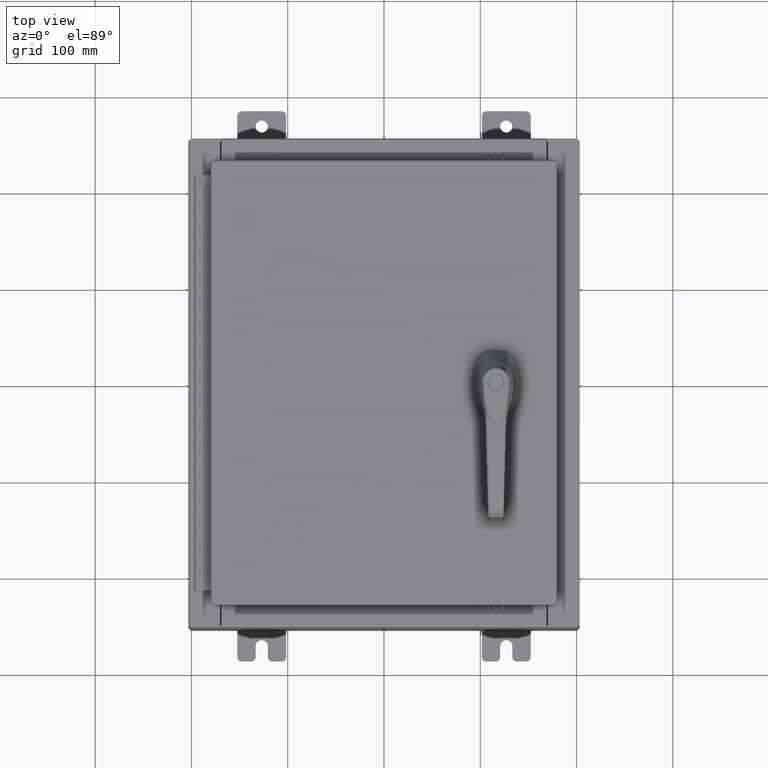
[diagram: clean part render]
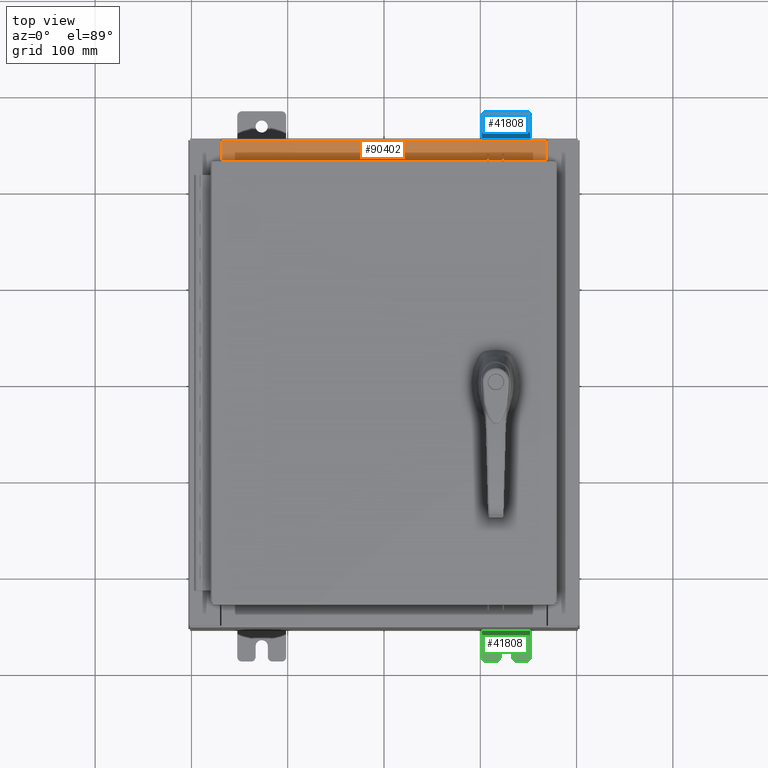
[diagram: same view with three faces highlighted in distinct colors, each labeled with its STEP entity id]
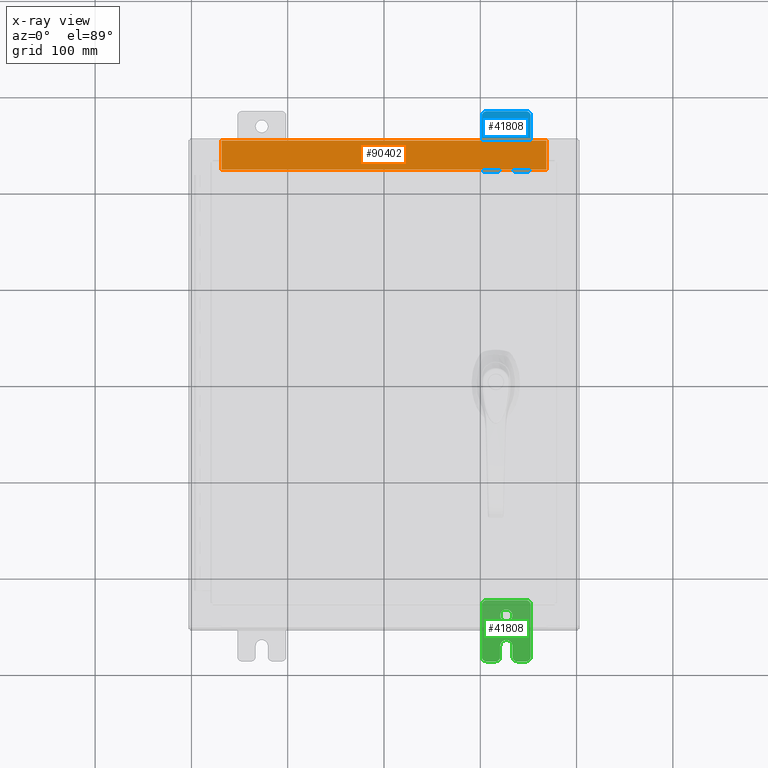
[diagram: x-ray of the same camera — body ghosted, the three highlighted faces saturated]
A machine part, top view with three faces highlighted in distinct colors.
The next image is the same camera in x-ray (body ghosted, the three faces saturated) — at least one of them is partly hidden behind the body in this view.
Their STEP definitions:

[orange] entity #90402 — the highlighted planar face has unit normal (0, 0, 1).
#4102 = CARTESIAN_POINT ( 'NONE',  ( -6.637200000000000000, -0.08770000000000026400, 3.999999999999999600 ) ) ;
#6492 = AXIS2_PLACEMENT_3D ( 'NONE', #108415, #32819, #91773 ) ;
#7328 = PLANE ( 'NONE',  #6492 ) ;
#7550 = DIRECTION ( 'NONE',  ( -0.0000000000000000000, 1.000000000000000000, -3.566381192773190000E-015 ) ) ;
#8422 = FACE_OUTER_BOUND ( 'NONE', #19111, .T. ) ;
#13014 = LINE ( 'NONE', #91639, #55303 ) ;
#14811 = CARTESIAN_POINT ( 'NONE',  ( 6.637200000000000000, -1.300299999999999800, 4.000000000000003600 ) ) ;
#17682 = LINE ( 'NONE', #32162, #104755 ) ;
#19111 = EDGE_LOOP ( 'NONE', ( #94051, #74750, #92454, #97359 ) ) ;
#21750 = VERTEX_POINT ( 'NONE', #4102 ) ;
#21896 = LINE ( 'NONE', #14811, #69433 ) ;
#32162 = CARTESIAN_POINT ( 'NONE',  ( 0.0000000000000000000, -0.08770000000000026400, 4.000000000000000000 ) ) ;
#32819 = DIRECTION ( 'NONE',  ( 0.0000000000000000000, 3.566381192773190000E-015, 1.000000000000000000 ) ) ;
#42193 = CARTESIAN_POINT ( 'NONE',  ( 6.637199999999999100, -0.08769999999999993100, 3.999999999999999600 ) ) ;
#42718 = EDGE_CURVE ( 'NONE', #52700, #21750, #13014, .T. ) ;
#45093 = VECTOR ( 'NONE', #82594, 39.37007874015748100 ) ;
#52700 = VERTEX_POINT ( 'NONE', #60321 ) ;
#55303 = VECTOR ( 'NONE', #7550, 39.37007874015748100 ) ;
#57280 = EDGE_CURVE ( 'NONE', #92545, #21750, #17682, .T. ) ;
#57596 = DIRECTION ( 'NONE',  ( -1.000000000000000000, 0.0000000000000000000, 0.0000000000000000000 ) ) ;
#60004 = CARTESIAN_POINT ( 'NONE',  ( 6.637200000000000000, -1.287299999999999900, 4.000000000000003600 ) ) ;
#60321 = CARTESIAN_POINT ( 'NONE',  ( -6.637200000000000000, -1.287299999999999200, 4.000000000000003600 ) ) ;
#65391 = DIRECTION ( 'NONE',  ( -0.0000000000000000000, -1.000000000000000000, 3.566381192773190000E-015 ) ) ;
#69433 = VECTOR ( 'NONE', #65391, 39.37007874015748100 ) ;
#71336 = EDGE_CURVE ( 'NONE', #87967, #52700, #89934, .T. ) ;
#74750 = ORIENTED_EDGE ( 'NONE', *, *, #71336, .F. ) ;
#79565 = EDGE_CURVE ( 'NONE', #92545, #87967, #21896, .T. ) ;
#82594 = DIRECTION ( 'NONE',  ( -1.000000000000000000, 0.0000000000000000000, 0.0000000000000000000 ) ) ;
#87967 = VERTEX_POINT ( 'NONE', #60004 ) ;
#89934 = LINE ( 'NONE', #97370, #45093 ) ;
#90402 = ADVANCED_FACE ( 'NONE', ( #8422 ), #7328, .T. ) ;
#91639 = CARTESIAN_POINT ( 'NONE',  ( -6.637200000000000000, -0.07469999999999973900, 3.999999999999999600 ) ) ;
#91773 = DIRECTION ( 'NONE',  ( 0.0000000000000000000, -1.000000000000000000, 3.566381192773190000E-015 ) ) ;
#92454 = ORIENTED_EDGE ( 'NONE', *, *, #79565, .F. ) ;
#92545 = VERTEX_POINT ( 'NONE', #42193 ) ;
#94051 = ORIENTED_EDGE ( 'NONE', *, *, #42718, .F. ) ;
#97359 = ORIENTED_EDGE ( 'NONE', *, *, #57280, .T. ) ;
#97370 = CARTESIAN_POINT ( 'NONE',  ( 6.637200000000000900, -1.287299999999999900, 4.000000000000003600 ) ) ;
#104755 = VECTOR ( 'NONE', #57596, 39.37007874015748100 ) ;
#108415 = CARTESIAN_POINT ( 'NONE',  ( 0.0000000000000000000, 1.425992975200418200E-014, 3.999999999999999600 ) ) ;

[blue] entity #41808 — the highlighted planar face has unit normal (0, 0, 1).
#828 = VERTEX_POINT ( 'NONE', #31743 ) ;
#1307 = VECTOR ( 'NONE', #72454, 39.37007874015748100 ) ;
#2871 = VECTOR ( 'NONE', #24168, 39.37007874015748100 ) ;
#3109 = AXIS2_PLACEMENT_3D ( 'NONE', #34900, #93877, #43405 ) ;
#3306 = ORIENTED_EDGE ( 'NONE', *, *, #62305, .T. ) ;
#3698 = DIRECTION ( 'NONE',  ( 0.0000000000000000000, 0.0000000000000000000, -1.000000000000000000 ) ) ;
#4730 = CARTESIAN_POINT ( 'NONE',  ( 0.0000000000000000000, 1.249999999999994700, -0.8100000000000092700 ) ) ;
#7276 = CARTESIAN_POINT ( 'NONE',  ( 0.0000000000000000000, 1.249999999999994200, -1.000000000000010400 ) ) ;
#7861 = FACE_BOUND ( 'NONE', #37366, .T. ) ;
#9079 = EDGE_CURVE ( 'NONE', #103286, #42061, #104393, .T. ) ;
#11403 = CARTESIAN_POINT ( 'NONE',  ( 0.0000000000000000000, 0.0000000000000000000, 0.0000000000000000000 ) ) ;
#13575 = ORIENTED_EDGE ( 'NONE', *, *, #61903, .T. ) ;
#15674 = CARTESIAN_POINT ( 'NONE',  ( 6.829619984160658000E-017, -1.250000000000003800, 0.2500000000000005000 ) ) ;
#16662 = LINE ( 'NONE', #80530, #83959 ) ;
#17321 = ORIENTED_EDGE ( 'NONE', *, *, #45807, .T. ) ;
#18038 = CARTESIAN_POINT ( 'NONE',  ( 0.0000000000000000000, -1.060000000000003400, -0.4400000000000005000 ) ) ;
#20679 = CARTESIAN_POINT ( 'NONE',  ( 0.0000000000000000000, 1.059999999999993600, -0.8100000000000089400 ) ) ;
#23374 = CARTESIAN_POINT ( 'NONE',  ( 0.0000000000000000000, 1.249999999999997600, 0.9999999999999951200 ) ) ;
#24168 = DIRECTION ( 'NONE',  ( 6.556435184794182400E-016, 1.000000000000000000, 0.0000000000000000000 ) ) ;
#24665 = VERTEX_POINT ( 'NONE', #37777 ) ;
#25093 = LINE ( 'NONE', #7276, #50223 ) ;
#25336 = EDGE_LOOP ( 'NONE', ( #3306, #94417, #69864, #103686, #106895, #34154, #46483, #72968, #66221, #42225, #17321, #69862, #13575, #75657 ) ) ;
#25478 = CIRCLE ( 'NONE', #100540, 0.1900000000000011100 ) ;
#26513 = DIRECTION ( 'NONE',  ( 0.0000000000000000000, 0.0000000000000000000, -1.000000000000000000 ) ) ;
#26853 = CIRCLE ( 'NONE', #100725, 0.1900000000000011100 ) ;
#27942 = LINE ( 'NONE', #15674, #2871 ) ;
#28317 = EDGE_CURVE ( 'NONE', #86008, #72783, #46642, .T. ) ;
#28808 = AXIS2_PLACEMENT_3D ( 'NONE', #93530, #43045, #102037 ) ;
#29185 = DIRECTION ( 'NONE',  ( 0.0000000000000000000, 0.0000000000000000000, -1.000000000000000000 ) ) ;
#30307 = FACE_OUTER_BOUND ( 'NONE', #25336, .T. ) ;
#30375 = ORIENTED_EDGE ( 'NONE', *, *, #32565, .F. ) ;
#30592 = CARTESIAN_POINT ( 'NONE',  ( 4.039428427013647300E-016, 0.6249999999999992200, -9.783840404509077400E-018 ) ) ;
#30777 = CARTESIAN_POINT ( 'NONE',  ( 0.0000000000000000000, -1.250000000000003100, 0.4400000000000020000 ) ) ;
#30815 = DIRECTION ( 'NONE',  ( 1.000000000000000000, -0.0000000000000000000, -5.163192708025532000E-017 ) ) ;
#31743 = CARTESIAN_POINT ( 'NONE',  ( 3.910348609313009100E-016, 0.6249999999999992200, -0.2499999999999999200 ) ) ;
#32565 = EDGE_CURVE ( 'NONE', #828, #81854, #44879, .T. ) ;
#32657 = AXIS2_PLACEMENT_3D ( 'NONE', #81298, #30815, #89801 ) ;
#34154 = ORIENTED_EDGE ( 'NONE', *, *, #84071, .T. ) ;
#34900 = CARTESIAN_POINT ( 'NONE',  ( 0.0000000000000000000, -1.060000000000002100, 0.4400000000000016700 ) ) ;
#35667 = CARTESIAN_POINT ( 'NONE',  ( 4.780733988912460100E-016, -0.6249999999999993300, 5.858939755051854500E-017 ) ) ;
#36596 = VERTEX_POINT ( 'NONE', #76926 ) ;
#36869 = DIRECTION ( 'NONE',  ( 1.000000000000000000, 0.0000000000000000000, -0.0000000000000000000 ) ) ;
#37366 = EDGE_LOOP ( 'NONE', ( #30375, #78326 ) ) ;
#37777 = CARTESIAN_POINT ( 'NONE',  ( 0.0000000000000000000, 1.059999999999996500, 0.9999999999999953400 ) ) ;
#38308 = EDGE_CURVE ( 'NONE', #40405, #103286, #60838, .T. ) ;
#39025 = DIRECTION ( 'NONE',  ( -5.163192708025533800E-017, 0.0000000000000000000, -1.000000000000000000 ) ) ;
#40405 = VERTEX_POINT ( 'NONE', #57310 ) ;
#41577 = EDGE_CURVE ( 'NONE', #106564, #86008, #66005, .T. ) ;
#41793 = AXIS2_PLACEMENT_3D ( 'NONE', #104749, #54273, #3698 ) ;
#41808 = ADVANCED_FACE ( 'NONE', ( #7861, #30307 ), #87395, .T. ) ;
#42061 = VERTEX_POINT ( 'NONE', #108038 ) ;
#42225 = ORIENTED_EDGE ( 'NONE', *, *, #9079, .T. ) ;
#43045 = DIRECTION ( 'NONE',  ( 1.000000000000000000, 0.0000000000000000000, -0.0000000000000000000 ) ) ;
#43405 = DIRECTION ( 'NONE',  ( 0.0000000000000000000, 0.0000000000000000000, -1.000000000000000000 ) ) ;
#44152 = DIRECTION ( 'NONE',  ( -6.523827964459551700E-016, -1.000000000000000000, 0.0000000000000000000 ) ) ;
#44879 = CIRCLE ( 'NONE', #93091, 0.2499999999999999200 ) ;
#45732 = CARTESIAN_POINT ( 'NONE',  ( 0.0000000000000000000, 1.059999999999996300, 0.8099999999999938400 ) ) ;
#45807 = EDGE_CURVE ( 'NONE', #42061, #76156, #16662, .T. ) ;
#46483 = ORIENTED_EDGE ( 'NONE', *, *, #70037, .T. ) ;
#46642 = CIRCLE ( 'NONE', #3109, 0.1900000000000011400 ) ;
#47373 = EDGE_CURVE ( 'NONE', #76156, #83464, #26853, .T. ) ;
#47657 = CARTESIAN_POINT ( 'NONE',  ( 1.928684683526972300E-016, -1.060000000000002100, 0.2500000000000005000 ) ) ;
#48817 = AXIS2_PLACEMENT_3D ( 'NONE', #45732, #104744, #54267 ) ;
#49550 = VERTEX_POINT ( 'NONE', #74103 ) ;
#49827 = EDGE_CURVE ( 'NONE', #72783, #68995, #27942, .T. ) ;
#50223 = VECTOR ( 'NONE', #57853, 39.37007874015748100 ) ;
#50532 = CARTESIAN_POINT ( 'NONE',  ( 0.0000000000000000000, 1.059999999999993400, -1.000000000000010000 ) ) ;
#50621 = DIRECTION ( 'NONE',  ( 0.0000000000000000000, -1.639108796198553600E-015, -1.000000000000000000 ) ) ;
#52978 = CARTESIAN_POINT ( 'NONE',  ( 0.0000000000000000000, -1.250000000000002200, 0.9999999999999992200 ) ) ;
#54267 = DIRECTION ( 'NONE',  ( 0.0000000000000000000, 0.0000000000000000000, -1.000000000000000000 ) ) ;
#54273 = DIRECTION ( 'NONE',  ( 1.000000000000000000, 0.0000000000000000000, -0.0000000000000000000 ) ) ;
#57310 = CARTESIAN_POINT ( 'NONE',  ( 0.0000000000000000000, -1.250000000000004700, -0.4400000000000002200 ) ) ;
#57853 = DIRECTION ( 'NONE',  ( 0.0000000000000000000, 1.639108796198553600E-015, 1.000000000000000000 ) ) ;
#58215 = VECTOR ( 'NONE', #103432, 39.37007874015748100 ) ;
#60613 = CIRCLE ( 'NONE', #88523, 0.2499999999999999200 ) ;
#60838 = LINE ( 'NONE', #52978, #58215 ) ;
#61761 = CIRCLE ( 'NONE', #28808, 0.1900000000000011100 ) ;
#61903 = EDGE_CURVE ( 'NONE', #83464, #49550, #25093, .T. ) ;
#62305 = EDGE_CURVE ( 'NONE', #24665, #64289, #65968, .T. ) ;
#64289 = VERTEX_POINT ( 'NONE', #82473 ) ;
#65363 = CARTESIAN_POINT ( 'NONE',  ( 0.0000000000000000000, -1.250000000000002400, 0.8099999999999980500 ) ) ;
#65968 = LINE ( 'NONE', #23374, #1307 ) ;
#66005 = LINE ( 'NONE', #101071, #108208 ) ;
#66221 = ORIENTED_EDGE ( 'NONE', *, *, #38308, .T. ) ;
#68548 = CIRCLE ( 'NONE', #32657, 0.2499999999999999200 ) ;
#68995 = VERTEX_POINT ( 'NONE', #97308 ) ;
#69862 = ORIENTED_EDGE ( 'NONE', *, *, #47373, .T. ) ;
#69864 = ORIENTED_EDGE ( 'NONE', *, *, #41577, .T. ) ;
#70037 = EDGE_CURVE ( 'NONE', #36596, #96807, #100624, .T. ) ;
#72454 = DIRECTION ( 'NONE',  ( 0.0000000000000000000, -1.000000000000000000, 1.639108796198558100E-015 ) ) ;
#72551 = CARTESIAN_POINT ( 'NONE',  ( 0.0000000000000000000, -1.250000000000005300, -0.8100000000000047200 ) ) ;
#72783 = VERTEX_POINT ( 'NONE', #47657 ) ;
#72968 = ORIENTED_EDGE ( 'NONE', *, *, #91471, .T. ) ;
#73979 = CARTESIAN_POINT ( 'NONE',  ( 4.780733988912460100E-016, -0.6249999999999993300, -0.2499999999999993900 ) ) ;
#74103 = CARTESIAN_POINT ( 'NONE',  ( 0.0000000000000000000, 1.249999999999997300, 0.8099999999999935000 ) ) ;
#75657 = ORIENTED_EDGE ( 'NONE', *, *, #80109, .T. ) ;
#76156 = VERTEX_POINT ( 'NONE', #50532 ) ;
#76926 = CARTESIAN_POINT ( 'NONE',  ( 4.780733988912460100E-016, -0.6249999999999993300, -0.2499999999999998600 ) ) ;
#76993 = DIRECTION ( 'NONE',  ( 1.000000000000000000, 0.0000000000000000000, -0.0000000000000000000 ) ) ;
#78326 = ORIENTED_EDGE ( 'NONE', *, *, #82414, .F. ) ;
#78562 = AXIS2_PLACEMENT_3D ( 'NONE', #11403, #36869, #95831 ) ;
#79668 = DIRECTION ( 'NONE',  ( 1.000000000000000000, 0.0000000000000000000, -0.0000000000000000000 ) ) ;
#80109 = EDGE_CURVE ( 'NONE', #49550, #24665, #102330, .T. ) ;
#80158 = DIRECTION ( 'NONE',  ( 0.0000000000000000000, 1.000000000000000000, -1.639108796198558100E-015 ) ) ;
#80530 = CARTESIAN_POINT ( 'NONE',  ( 0.0000000000000000000, -1.250000000000005600, -1.000000000000006200 ) ) ;
#81298 = CARTESIAN_POINT ( 'NONE',  ( 4.039428427013647300E-016, 0.6249999999999992200, -9.783840404509077400E-018 ) ) ;
#81854 = VERTEX_POINT ( 'NONE', #103620 ) ;
#82414 = EDGE_CURVE ( 'NONE', #81854, #828, #68548, .T. ) ;
#82459 = DIRECTION ( 'NONE',  ( -6.556435184794182400E-016, -1.000000000000000000, -1.639108796198545600E-016 ) ) ;
#82473 = CARTESIAN_POINT ( 'NONE',  ( 0.0000000000000000000, -1.060000000000001200, 0.9999999999999988900 ) ) ;
#83464 = VERTEX_POINT ( 'NONE', #4730 ) ;
#83959 = VECTOR ( 'NONE', #80158, 39.37007874015748100 ) ;
#84071 = EDGE_CURVE ( 'NONE', #68995, #36596, #60613, .T. ) ;
#86008 = VERTEX_POINT ( 'NONE', #30777 ) ;
#87395 = PLANE ( 'NONE',  #78562 ) ;
#88523 = AXIS2_PLACEMENT_3D ( 'NONE', #35667, #94605, #44152 ) ;
#89561 = DIRECTION ( 'NONE',  ( 1.000000000000000000, -0.0000000000000000000, -5.163192708025532000E-017 ) ) ;
#89801 = DIRECTION ( 'NONE',  ( -5.163192708025533800E-017, 0.0000000000000000000, -1.000000000000000000 ) ) ;
#91471 = EDGE_CURVE ( 'NONE', #96807, #40405, #25478, .T. ) ;
#93091 = AXIS2_PLACEMENT_3D ( 'NONE', #30592, #89561, #39025 ) ;
#93530 = CARTESIAN_POINT ( 'NONE',  ( 0.0000000000000000000, -1.060000000000001600, 0.8099999999999978300 ) ) ;
#93877 = DIRECTION ( 'NONE',  ( 1.000000000000000000, 0.0000000000000000000, -0.0000000000000000000 ) ) ;
#94417 = ORIENTED_EDGE ( 'NONE', *, *, #99382, .T. ) ;
#94605 = DIRECTION ( 'NONE',  ( -1.000000000000000000, 6.523827964459549700E-016, 5.163192708025532000E-017 ) ) ;
#95831 = DIRECTION ( 'NONE',  ( -0.0000000000000000000, 0.0000000000000000000, -1.000000000000000000 ) ) ;
#96807 = VERTEX_POINT ( 'NONE', #100617 ) ;
#97308 = CARTESIAN_POINT ( 'NONE',  ( 0.0000000000000000000, -0.6249999999999992200, 0.2500000000000005000 ) ) ;
#99382 = EDGE_CURVE ( 'NONE', #64289, #106564, #61761, .T. ) ;
#100540 = AXIS2_PLACEMENT_3D ( 'NONE', #18038, #76993, #26513 ) ;
#100617 = CARTESIAN_POINT ( 'NONE',  ( 1.928684683526964400E-016, -1.060000000000003400, -0.2499999999999994400 ) ) ;
#100624 = LINE ( 'NONE', #73979, #103266 ) ;
#100725 = AXIS2_PLACEMENT_3D ( 'NONE', #20679, #79668, #29185 ) ;
#101071 = CARTESIAN_POINT ( 'NONE',  ( 0.0000000000000000000, -1.250000000000002200, 0.9999999999999992200 ) ) ;
#102037 = DIRECTION ( 'NONE',  ( 0.0000000000000000000, 0.0000000000000000000, -1.000000000000000000 ) ) ;
#102330 = CIRCLE ( 'NONE', #48817, 0.1900000000000011100 ) ;
#103266 = VECTOR ( 'NONE', #82459, 39.37007874015748100 ) ;
#103286 = VERTEX_POINT ( 'NONE', #72551 ) ;
#103432 = DIRECTION ( 'NONE',  ( 0.0000000000000000000, -1.639108796198553600E-015, -1.000000000000000000 ) ) ;
#103620 = CARTESIAN_POINT ( 'NONE',  ( 4.168508244714285900E-016, 0.6249999999999992200, 0.2499999999999999200 ) ) ;
#103686 = ORIENTED_EDGE ( 'NONE', *, *, #28317, .T. ) ;
#104393 = CIRCLE ( 'NONE', #41793, 0.1900000000000011100 ) ;
#104744 = DIRECTION ( 'NONE',  ( 1.000000000000000000, 0.0000000000000000000, -0.0000000000000000000 ) ) ;
#104749 = CARTESIAN_POINT ( 'NONE',  ( 0.0000000000000000000, -1.060000000000004100, -0.8100000000000050500 ) ) ;
#106564 = VERTEX_POINT ( 'NONE', #65363 ) ;
#106895 = ORIENTED_EDGE ( 'NONE', *, *, #49827, .T. ) ;
#108038 = CARTESIAN_POINT ( 'NONE',  ( 0.0000000000000000000, -1.060000000000004500, -1.000000000000006400 ) ) ;
#108208 = VECTOR ( 'NONE', #50621, 39.37007874015748100 ) ;

[green] entity #41808 — the highlighted planar face has unit normal (0, 0, 1).
#828 = VERTEX_POINT ( 'NONE', #31743 ) ;
#1307 = VECTOR ( 'NONE', #72454, 39.37007874015748100 ) ;
#2871 = VECTOR ( 'NONE', #24168, 39.37007874015748100 ) ;
#3109 = AXIS2_PLACEMENT_3D ( 'NONE', #34900, #93877, #43405 ) ;
#3306 = ORIENTED_EDGE ( 'NONE', *, *, #62305, .T. ) ;
#3698 = DIRECTION ( 'NONE',  ( 0.0000000000000000000, 0.0000000000000000000, -1.000000000000000000 ) ) ;
#4730 = CARTESIAN_POINT ( 'NONE',  ( 0.0000000000000000000, 1.249999999999994700, -0.8100000000000092700 ) ) ;
#7276 = CARTESIAN_POINT ( 'NONE',  ( 0.0000000000000000000, 1.249999999999994200, -1.000000000000010400 ) ) ;
#7861 = FACE_BOUND ( 'NONE', #37366, .T. ) ;
#9079 = EDGE_CURVE ( 'NONE', #103286, #42061, #104393, .T. ) ;
#11403 = CARTESIAN_POINT ( 'NONE',  ( 0.0000000000000000000, 0.0000000000000000000, 0.0000000000000000000 ) ) ;
#13575 = ORIENTED_EDGE ( 'NONE', *, *, #61903, .T. ) ;
#15674 = CARTESIAN_POINT ( 'NONE',  ( 6.829619984160658000E-017, -1.250000000000003800, 0.2500000000000005000 ) ) ;
#16662 = LINE ( 'NONE', #80530, #83959 ) ;
#17321 = ORIENTED_EDGE ( 'NONE', *, *, #45807, .T. ) ;
#18038 = CARTESIAN_POINT ( 'NONE',  ( 0.0000000000000000000, -1.060000000000003400, -0.4400000000000005000 ) ) ;
#20679 = CARTESIAN_POINT ( 'NONE',  ( 0.0000000000000000000, 1.059999999999993600, -0.8100000000000089400 ) ) ;
#23374 = CARTESIAN_POINT ( 'NONE',  ( 0.0000000000000000000, 1.249999999999997600, 0.9999999999999951200 ) ) ;
#24168 = DIRECTION ( 'NONE',  ( 6.556435184794182400E-016, 1.000000000000000000, 0.0000000000000000000 ) ) ;
#24665 = VERTEX_POINT ( 'NONE', #37777 ) ;
#25093 = LINE ( 'NONE', #7276, #50223 ) ;
#25336 = EDGE_LOOP ( 'NONE', ( #3306, #94417, #69864, #103686, #106895, #34154, #46483, #72968, #66221, #42225, #17321, #69862, #13575, #75657 ) ) ;
#25478 = CIRCLE ( 'NONE', #100540, 0.1900000000000011100 ) ;
#26513 = DIRECTION ( 'NONE',  ( 0.0000000000000000000, 0.0000000000000000000, -1.000000000000000000 ) ) ;
#26853 = CIRCLE ( 'NONE', #100725, 0.1900000000000011100 ) ;
#27942 = LINE ( 'NONE', #15674, #2871 ) ;
#28317 = EDGE_CURVE ( 'NONE', #86008, #72783, #46642, .T. ) ;
#28808 = AXIS2_PLACEMENT_3D ( 'NONE', #93530, #43045, #102037 ) ;
#29185 = DIRECTION ( 'NONE',  ( 0.0000000000000000000, 0.0000000000000000000, -1.000000000000000000 ) ) ;
#30307 = FACE_OUTER_BOUND ( 'NONE', #25336, .T. ) ;
#30375 = ORIENTED_EDGE ( 'NONE', *, *, #32565, .F. ) ;
#30592 = CARTESIAN_POINT ( 'NONE',  ( 4.039428427013647300E-016, 0.6249999999999992200, -9.783840404509077400E-018 ) ) ;
#30777 = CARTESIAN_POINT ( 'NONE',  ( 0.0000000000000000000, -1.250000000000003100, 0.4400000000000020000 ) ) ;
#30815 = DIRECTION ( 'NONE',  ( 1.000000000000000000, -0.0000000000000000000, -5.163192708025532000E-017 ) ) ;
#31743 = CARTESIAN_POINT ( 'NONE',  ( 3.910348609313009100E-016, 0.6249999999999992200, -0.2499999999999999200 ) ) ;
#32565 = EDGE_CURVE ( 'NONE', #828, #81854, #44879, .T. ) ;
#32657 = AXIS2_PLACEMENT_3D ( 'NONE', #81298, #30815, #89801 ) ;
#34154 = ORIENTED_EDGE ( 'NONE', *, *, #84071, .T. ) ;
#34900 = CARTESIAN_POINT ( 'NONE',  ( 0.0000000000000000000, -1.060000000000002100, 0.4400000000000016700 ) ) ;
#35667 = CARTESIAN_POINT ( 'NONE',  ( 4.780733988912460100E-016, -0.6249999999999993300, 5.858939755051854500E-017 ) ) ;
#36596 = VERTEX_POINT ( 'NONE', #76926 ) ;
#36869 = DIRECTION ( 'NONE',  ( 1.000000000000000000, 0.0000000000000000000, -0.0000000000000000000 ) ) ;
#37366 = EDGE_LOOP ( 'NONE', ( #30375, #78326 ) ) ;
#37777 = CARTESIAN_POINT ( 'NONE',  ( 0.0000000000000000000, 1.059999999999996500, 0.9999999999999953400 ) ) ;
#38308 = EDGE_CURVE ( 'NONE', #40405, #103286, #60838, .T. ) ;
#39025 = DIRECTION ( 'NONE',  ( -5.163192708025533800E-017, 0.0000000000000000000, -1.000000000000000000 ) ) ;
#40405 = VERTEX_POINT ( 'NONE', #57310 ) ;
#41577 = EDGE_CURVE ( 'NONE', #106564, #86008, #66005, .T. ) ;
#41793 = AXIS2_PLACEMENT_3D ( 'NONE', #104749, #54273, #3698 ) ;
#41808 = ADVANCED_FACE ( 'NONE', ( #7861, #30307 ), #87395, .T. ) ;
#42061 = VERTEX_POINT ( 'NONE', #108038 ) ;
#42225 = ORIENTED_EDGE ( 'NONE', *, *, #9079, .T. ) ;
#43045 = DIRECTION ( 'NONE',  ( 1.000000000000000000, 0.0000000000000000000, -0.0000000000000000000 ) ) ;
#43405 = DIRECTION ( 'NONE',  ( 0.0000000000000000000, 0.0000000000000000000, -1.000000000000000000 ) ) ;
#44152 = DIRECTION ( 'NONE',  ( -6.523827964459551700E-016, -1.000000000000000000, 0.0000000000000000000 ) ) ;
#44879 = CIRCLE ( 'NONE', #93091, 0.2499999999999999200 ) ;
#45732 = CARTESIAN_POINT ( 'NONE',  ( 0.0000000000000000000, 1.059999999999996300, 0.8099999999999938400 ) ) ;
#45807 = EDGE_CURVE ( 'NONE', #42061, #76156, #16662, .T. ) ;
#46483 = ORIENTED_EDGE ( 'NONE', *, *, #70037, .T. ) ;
#46642 = CIRCLE ( 'NONE', #3109, 0.1900000000000011400 ) ;
#47373 = EDGE_CURVE ( 'NONE', #76156, #83464, #26853, .T. ) ;
#47657 = CARTESIAN_POINT ( 'NONE',  ( 1.928684683526972300E-016, -1.060000000000002100, 0.2500000000000005000 ) ) ;
#48817 = AXIS2_PLACEMENT_3D ( 'NONE', #45732, #104744, #54267 ) ;
#49550 = VERTEX_POINT ( 'NONE', #74103 ) ;
#49827 = EDGE_CURVE ( 'NONE', #72783, #68995, #27942, .T. ) ;
#50223 = VECTOR ( 'NONE', #57853, 39.37007874015748100 ) ;
#50532 = CARTESIAN_POINT ( 'NONE',  ( 0.0000000000000000000, 1.059999999999993400, -1.000000000000010000 ) ) ;
#50621 = DIRECTION ( 'NONE',  ( 0.0000000000000000000, -1.639108796198553600E-015, -1.000000000000000000 ) ) ;
#52978 = CARTESIAN_POINT ( 'NONE',  ( 0.0000000000000000000, -1.250000000000002200, 0.9999999999999992200 ) ) ;
#54267 = DIRECTION ( 'NONE',  ( 0.0000000000000000000, 0.0000000000000000000, -1.000000000000000000 ) ) ;
#54273 = DIRECTION ( 'NONE',  ( 1.000000000000000000, 0.0000000000000000000, -0.0000000000000000000 ) ) ;
#57310 = CARTESIAN_POINT ( 'NONE',  ( 0.0000000000000000000, -1.250000000000004700, -0.4400000000000002200 ) ) ;
#57853 = DIRECTION ( 'NONE',  ( 0.0000000000000000000, 1.639108796198553600E-015, 1.000000000000000000 ) ) ;
#58215 = VECTOR ( 'NONE', #103432, 39.37007874015748100 ) ;
#60613 = CIRCLE ( 'NONE', #88523, 0.2499999999999999200 ) ;
#60838 = LINE ( 'NONE', #52978, #58215 ) ;
#61761 = CIRCLE ( 'NONE', #28808, 0.1900000000000011100 ) ;
#61903 = EDGE_CURVE ( 'NONE', #83464, #49550, #25093, .T. ) ;
#62305 = EDGE_CURVE ( 'NONE', #24665, #64289, #65968, .T. ) ;
#64289 = VERTEX_POINT ( 'NONE', #82473 ) ;
#65363 = CARTESIAN_POINT ( 'NONE',  ( 0.0000000000000000000, -1.250000000000002400, 0.8099999999999980500 ) ) ;
#65968 = LINE ( 'NONE', #23374, #1307 ) ;
#66005 = LINE ( 'NONE', #101071, #108208 ) ;
#66221 = ORIENTED_EDGE ( 'NONE', *, *, #38308, .T. ) ;
#68548 = CIRCLE ( 'NONE', #32657, 0.2499999999999999200 ) ;
#68995 = VERTEX_POINT ( 'NONE', #97308 ) ;
#69862 = ORIENTED_EDGE ( 'NONE', *, *, #47373, .T. ) ;
#69864 = ORIENTED_EDGE ( 'NONE', *, *, #41577, .T. ) ;
#70037 = EDGE_CURVE ( 'NONE', #36596, #96807, #100624, .T. ) ;
#72454 = DIRECTION ( 'NONE',  ( 0.0000000000000000000, -1.000000000000000000, 1.639108796198558100E-015 ) ) ;
#72551 = CARTESIAN_POINT ( 'NONE',  ( 0.0000000000000000000, -1.250000000000005300, -0.8100000000000047200 ) ) ;
#72783 = VERTEX_POINT ( 'NONE', #47657 ) ;
#72968 = ORIENTED_EDGE ( 'NONE', *, *, #91471, .T. ) ;
#73979 = CARTESIAN_POINT ( 'NONE',  ( 4.780733988912460100E-016, -0.6249999999999993300, -0.2499999999999993900 ) ) ;
#74103 = CARTESIAN_POINT ( 'NONE',  ( 0.0000000000000000000, 1.249999999999997300, 0.8099999999999935000 ) ) ;
#75657 = ORIENTED_EDGE ( 'NONE', *, *, #80109, .T. ) ;
#76156 = VERTEX_POINT ( 'NONE', #50532 ) ;
#76926 = CARTESIAN_POINT ( 'NONE',  ( 4.780733988912460100E-016, -0.6249999999999993300, -0.2499999999999998600 ) ) ;
#76993 = DIRECTION ( 'NONE',  ( 1.000000000000000000, 0.0000000000000000000, -0.0000000000000000000 ) ) ;
#78326 = ORIENTED_EDGE ( 'NONE', *, *, #82414, .F. ) ;
#78562 = AXIS2_PLACEMENT_3D ( 'NONE', #11403, #36869, #95831 ) ;
#79668 = DIRECTION ( 'NONE',  ( 1.000000000000000000, 0.0000000000000000000, -0.0000000000000000000 ) ) ;
#80109 = EDGE_CURVE ( 'NONE', #49550, #24665, #102330, .T. ) ;
#80158 = DIRECTION ( 'NONE',  ( 0.0000000000000000000, 1.000000000000000000, -1.639108796198558100E-015 ) ) ;
#80530 = CARTESIAN_POINT ( 'NONE',  ( 0.0000000000000000000, -1.250000000000005600, -1.000000000000006200 ) ) ;
#81298 = CARTESIAN_POINT ( 'NONE',  ( 4.039428427013647300E-016, 0.6249999999999992200, -9.783840404509077400E-018 ) ) ;
#81854 = VERTEX_POINT ( 'NONE', #103620 ) ;
#82414 = EDGE_CURVE ( 'NONE', #81854, #828, #68548, .T. ) ;
#82459 = DIRECTION ( 'NONE',  ( -6.556435184794182400E-016, -1.000000000000000000, -1.639108796198545600E-016 ) ) ;
#82473 = CARTESIAN_POINT ( 'NONE',  ( 0.0000000000000000000, -1.060000000000001200, 0.9999999999999988900 ) ) ;
#83464 = VERTEX_POINT ( 'NONE', #4730 ) ;
#83959 = VECTOR ( 'NONE', #80158, 39.37007874015748100 ) ;
#84071 = EDGE_CURVE ( 'NONE', #68995, #36596, #60613, .T. ) ;
#86008 = VERTEX_POINT ( 'NONE', #30777 ) ;
#87395 = PLANE ( 'NONE',  #78562 ) ;
#88523 = AXIS2_PLACEMENT_3D ( 'NONE', #35667, #94605, #44152 ) ;
#89561 = DIRECTION ( 'NONE',  ( 1.000000000000000000, -0.0000000000000000000, -5.163192708025532000E-017 ) ) ;
#89801 = DIRECTION ( 'NONE',  ( -5.163192708025533800E-017, 0.0000000000000000000, -1.000000000000000000 ) ) ;
#91471 = EDGE_CURVE ( 'NONE', #96807, #40405, #25478, .T. ) ;
#93091 = AXIS2_PLACEMENT_3D ( 'NONE', #30592, #89561, #39025 ) ;
#93530 = CARTESIAN_POINT ( 'NONE',  ( 0.0000000000000000000, -1.060000000000001600, 0.8099999999999978300 ) ) ;
#93877 = DIRECTION ( 'NONE',  ( 1.000000000000000000, 0.0000000000000000000, -0.0000000000000000000 ) ) ;
#94417 = ORIENTED_EDGE ( 'NONE', *, *, #99382, .T. ) ;
#94605 = DIRECTION ( 'NONE',  ( -1.000000000000000000, 6.523827964459549700E-016, 5.163192708025532000E-017 ) ) ;
#95831 = DIRECTION ( 'NONE',  ( -0.0000000000000000000, 0.0000000000000000000, -1.000000000000000000 ) ) ;
#96807 = VERTEX_POINT ( 'NONE', #100617 ) ;
#97308 = CARTESIAN_POINT ( 'NONE',  ( 0.0000000000000000000, -0.6249999999999992200, 0.2500000000000005000 ) ) ;
#99382 = EDGE_CURVE ( 'NONE', #64289, #106564, #61761, .T. ) ;
#100540 = AXIS2_PLACEMENT_3D ( 'NONE', #18038, #76993, #26513 ) ;
#100617 = CARTESIAN_POINT ( 'NONE',  ( 1.928684683526964400E-016, -1.060000000000003400, -0.2499999999999994400 ) ) ;
#100624 = LINE ( 'NONE', #73979, #103266 ) ;
#100725 = AXIS2_PLACEMENT_3D ( 'NONE', #20679, #79668, #29185 ) ;
#101071 = CARTESIAN_POINT ( 'NONE',  ( 0.0000000000000000000, -1.250000000000002200, 0.9999999999999992200 ) ) ;
#102037 = DIRECTION ( 'NONE',  ( 0.0000000000000000000, 0.0000000000000000000, -1.000000000000000000 ) ) ;
#102330 = CIRCLE ( 'NONE', #48817, 0.1900000000000011100 ) ;
#103266 = VECTOR ( 'NONE', #82459, 39.37007874015748100 ) ;
#103286 = VERTEX_POINT ( 'NONE', #72551 ) ;
#103432 = DIRECTION ( 'NONE',  ( 0.0000000000000000000, -1.639108796198553600E-015, -1.000000000000000000 ) ) ;
#103620 = CARTESIAN_POINT ( 'NONE',  ( 4.168508244714285900E-016, 0.6249999999999992200, 0.2499999999999999200 ) ) ;
#103686 = ORIENTED_EDGE ( 'NONE', *, *, #28317, .T. ) ;
#104393 = CIRCLE ( 'NONE', #41793, 0.1900000000000011100 ) ;
#104744 = DIRECTION ( 'NONE',  ( 1.000000000000000000, 0.0000000000000000000, -0.0000000000000000000 ) ) ;
#104749 = CARTESIAN_POINT ( 'NONE',  ( 0.0000000000000000000, -1.060000000000004100, -0.8100000000000050500 ) ) ;
#106564 = VERTEX_POINT ( 'NONE', #65363 ) ;
#106895 = ORIENTED_EDGE ( 'NONE', *, *, #49827, .T. ) ;
#108038 = CARTESIAN_POINT ( 'NONE',  ( 0.0000000000000000000, -1.060000000000004500, -1.000000000000006400 ) ) ;
#108208 = VECTOR ( 'NONE', #50621, 39.37007874015748100 ) ;